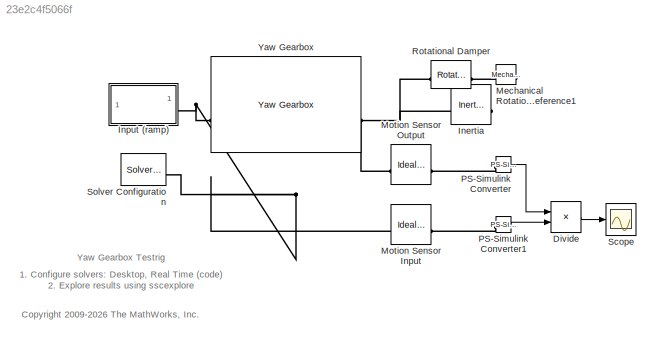
MODEL slx_23e2c4f5066f
KIND model
CONFIG EnableMultiTasking = on
CONFIG PostLoadFcn = warning off Simulink:blocks:DivideByZero
CONFIG SolverName = ode23t
CONFIG StopTime = 300
BLOCK [Product] Divide
  Inputs = /*
BLOCK [Reference] Inertia  REF=fl_lib/Mechanical/Rotational Elements/Inertia
  SourceBlock = fl_lib/Mechanical/Rotational Elements/Inertia
  SourceType = Inertia
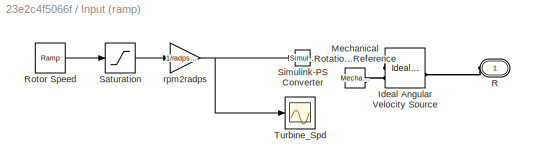
BLOCK [SubSystem] Input (ramp)
BLOCK [Reference] Input (ramp)/Ideal Angular Velocity Source  REF=fl_lib/Mechanical/Mechanical Sources/Ideal Angular
Velocity Source
  SourceBlock = fl_lib/Mechanical/Mechanical Sources/Ideal Angular\nVelocity Source
  SourceType = Ideal Angular\nVelocity Source
BLOCK [Reference] Input (ramp)/Mechanical Rotational Reference  REF=fl_lib/Mechanical/Rotational Elements/Mechanical
Rotational Reference
  SourceBlock = fl_lib/Mechanical/Rotational Elements/Mechanical\nRotational Reference
  SourceType = Mechanical\nRotational Reference
BLOCK [PMIOPort] Input (ramp)/R
  NameLocation = top
  Side = Left
  Tag = PMCPort
BLOCK [Reference] Input (ramp)/Rotor Speed  REF=simulink/Sources/Ramp
  SourceBlock = simulink/Sources/Ramp
  SourceType = Ramp
BLOCK [Saturate] Input (ramp)/Saturation
  LowerLimit = 0
  UpperLimit = final_speed
BLOCK [Reference] Input (ramp)/Simulink-PS Converter  REF=nesl_utility/Simulink-PS
Converter
  SourceBlock = nesl_utility/Simulink-PS\nConverter
  SourceType = Simulink-PS\nConverter
BLOCK [Scope] Input (ramp)/Turbine_Spd
  ActiveDisplayYMaximum = 1.5
  ActiveDisplayYMinimum = 0
  DataLoggingDecimateData = on
  DataLoggingDecimation = 1
  DataLoggingSaveFormat = Structure With Time
  Floating = off
  GraphicalSettings = {"GraphicalSettings":{"LegacySettings":true,"Style":{"AxesScalingProperties":{"ScaleAxesLimitsAtStop":false},"Style":{"AxesColor":"[0 0 0]","ChannelNames":[""],"ColorOrder":"[1 0.909803921568627 0.392156862745098;0.149019607843137 0.549019607843137 0.866666666666667;0.96078431372549 0.466666666666667 0.16078431372549;0.286274509803922 0.858823529411765 0.250980392156863;0.752941176470588 0.3607843...<+488ch>
  MultipleDisplayCache = [{"MaxYLimMag":10,"MaxYLimReal":1.5,"MinYLimMag":0,"MinYLimReal":0,"PlotAsMagnitudePhase":false,"ShowGrid":true,"ShowLegend":false,"Title":"%<SignalLabel>","YLabel":""}]
  NumInputPorts = 1
  WasSavedAsWebScope = on
  WindowPosition = [642 539 324 239]
BLOCK [Gain] Input (ramp)/rpm2radps
  Gain = 1/radps2rpm
  NameLocation = top
BLOCK [Reference] Mechanical Rotational Reference1  REF=fl_lib/Mechanical/Rotational Elements/Mechanical
Rotational Reference
  NameLocation = top
  SourceBlock = fl_lib/Mechanical/Rotational Elements/Mechanical\nRotational Reference
  SourceType = Mechanical\nRotational Reference
BLOCK [Reference] Motion Sensor Input  REF=fl_lib/Mechanical/Mechanical Sensors/Ideal Rotational
Motion Sensor
  SourceBlock = fl_lib/Mechanical/Mechanical Sensors/Ideal Rotational\nMotion Sensor
  SourceType = Ideal Rotational\nMotion Sensor
BLOCK [Reference] Motion Sensor Output  REF=fl_lib/Mechanical/Mechanical Sensors/Ideal Rotational
Motion Sensor
  SourceBlock = fl_lib/Mechanical/Mechanical Sensors/Ideal Rotational\nMotion Sensor
  SourceType = Ideal Rotational\nMotion Sensor
BLOCK [Reference] PS-Simulink Converter  REF=nesl_utility/PS-Simulink
Converter
  SourceBlock = nesl_utility/PS-Simulink\nConverter
  SourceType = PS-Simulink\nConverter
BLOCK [Reference] PS-Simulink Converter1  REF=nesl_utility/PS-Simulink
Converter
  SourceBlock = nesl_utility/PS-Simulink\nConverter
  SourceType = PS-Simulink\nConverter
BLOCK [Reference] Rotational Damper  REF=fl_lib/Mechanical/Rotational Elements/Rotational Damper
  NameLocation = top
  SourceBlock = fl_lib/Mechanical/Rotational Elements/Rotational Damper
  SourceType = Rotational Damper
BLOCK [Scope] Scope
  ActiveDisplayYMaximum = 310.1985307541795
  ActiveDisplayYMinimum = 224.03227221135191
  DataLoggingDecimateData = on
  DataLoggingDecimation = 1
  DataLoggingLimitDataPoints = on
  DataLoggingSaveFormat = Structure With Time
  DataLoggingVariableName = ScopeData1
  Floating = off
  GraphicalSettings = {"GraphicalSettings":{"LegacySettings":true,"Style":{"AxesScalingProperties":{"ScaleAxesLimitsAtStop":false},"Style":{"AxesColor":"[0 0 0]","ChannelNames":[""],"ColorOrder":"[1 0.909803921568627 0.392156862745098;0.149019607843137 0.549019607843137 0.866666666666667;0.96078431372549 0.466666666666667 0.16078431372549;0.286274509803922 0.858823529411765 0.250980392156863;0.752941176470588 0.3607843...<+488ch>
  MultipleDisplayCache = [{"MaxYLimMag":10,"MaxYLimReal":310.1985307541795,"MinYLimMag":0,"MinYLimReal":224.03227221135191,"PlotAsMagnitudePhase":false,"ShowGrid":true,"ShowLegend":false,"Title":"%<SignalLabel>","YLabel":""}]
  NumInputPorts = 1
  ScopeFrameLocation = window
  TimeSpan = 300
  Visible = on
  WasSavedAsWebScope = on
  WindowPosition = [642.000000,539.000000,324.000000,239.000000,]
BLOCK [Reference] Solver Configuration  REF=nesl_utility/Solver
Configuration
  SourceBlock = nesl_utility/Solver\nConfiguration
  SourceType = Solver\nConfiguration
BLOCK [Reference] Yaw Gearbox  REF=Yaw_Gearbox_Lib/Yaw Gearbox
  SourceBlock = Yaw_Gearbox_Lib/Yaw Gearbox
ANNOTATION (root): 1. Configure solvers: Desktop , Real Time ( code ) 2. Explore results using sscexplore
ANNOTATION (root): <copyright redacted>
ANNOTATION (root): Yaw Gearbox Testrig
LINE Divide:1 -> Scope:1
LINE Input (ramp)/Rotor Speed:1 -> Input (ramp)/Saturation:1
LINE Input (ramp)/Saturation:1 -> Input (ramp)/rpm2radps:1
NET Input (ramp)/rpm2radps:1 -> Input (ramp)/Simulink-PS Converter:1, Input (ramp)/Turbine_Spd:1
LINE PS-Simulink Converter1:1 -> Divide:2
LINE PS-Simulink Converter:1 -> Divide:1
PNET net1: Inertia:LConn1 -- Motion Sensor Output:LConn1 -- Rotational Damper:LConn1 -- Yaw Gearbox:RConn1
PLINE Input (ramp)/Ideal Angular Velocity Source:LConn1 -- Input (ramp)/R:RConn1
PLINE Input (ramp)/Ideal Angular Velocity Source:RConn1 -- Input (ramp)/Simulink-PS Converter:RConn1
PLINE Input (ramp)/Ideal Angular Velocity Source:RConn2 -- Input (ramp)/Mechanical Rotational Reference:LConn1
PNET net2: Input (ramp):LConn1 -- Motion Sensor Input:LConn1 -- Solver Configuration:RConn1 -- Yaw Gearbox:LConn1
PLINE Mechanical Rotational Reference1:LConn1 -- Rotational Damper:RConn1
PLINE Motion Sensor Input:RConn1 -- PS-Simulink Converter1:LConn1
PLINE Motion Sensor Output:RConn1 -- PS-Simulink Converter:LConn1
note: NET lines group one-source signal fan-out (src -> all destinations, sorted); 1:1 wires keep LINE; PNET lines group multi-terminal physical nets as a canonical sorted terminal list (undirected conserving connections); 2-terminal nets keep the pairwise PLINE form
